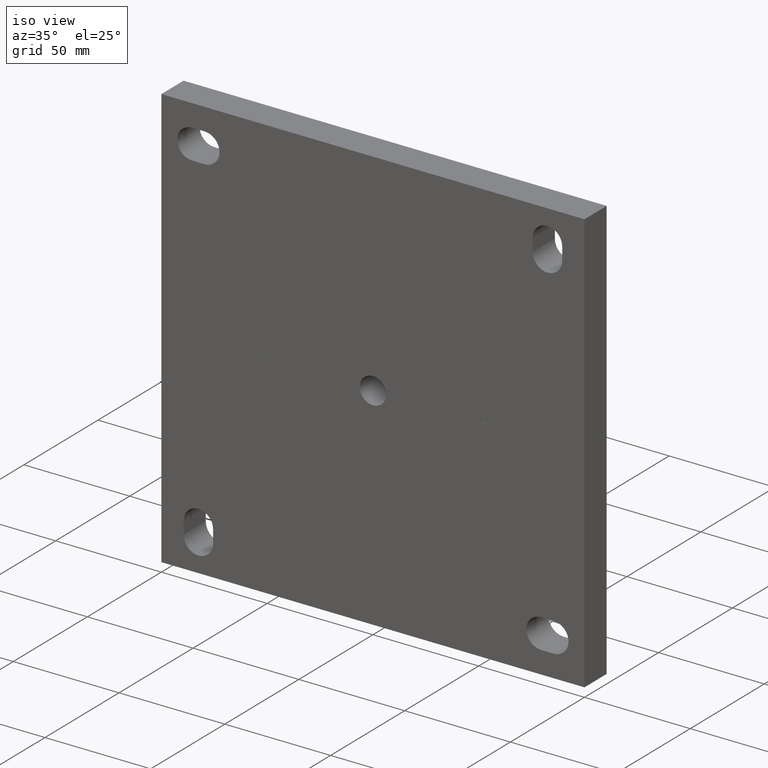
[diagram: clean part render]
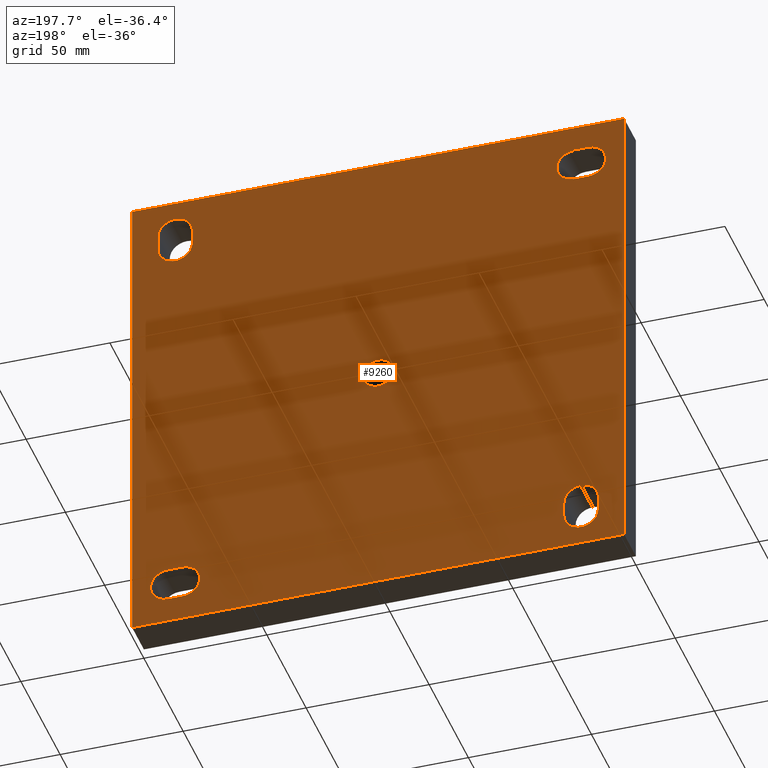
[diagram: tour spotlight — one face highlighted and labeled with its STEP entity id]
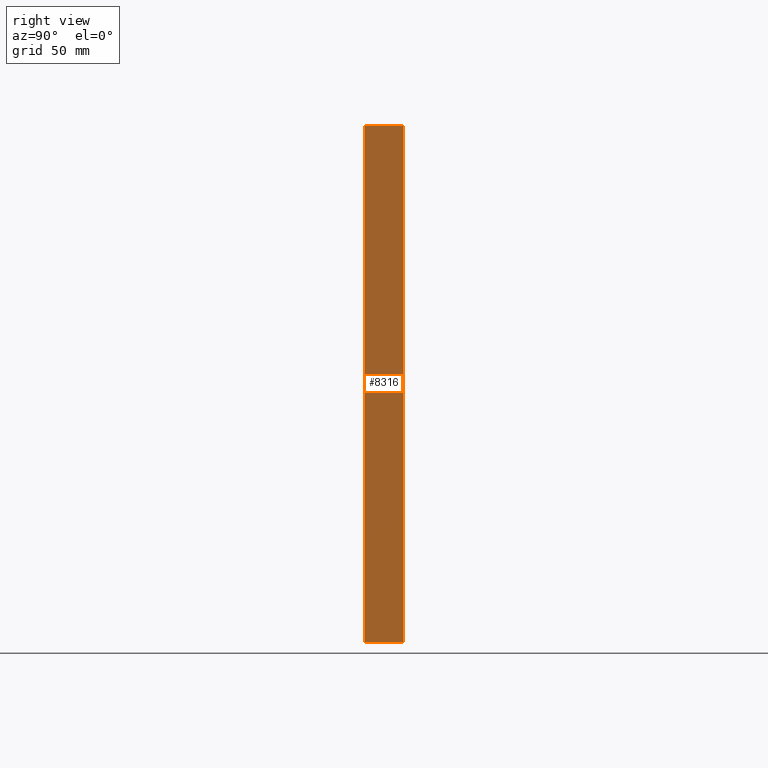
[diagram: tour spotlight — one face highlighted and labeled with its STEP entity id]
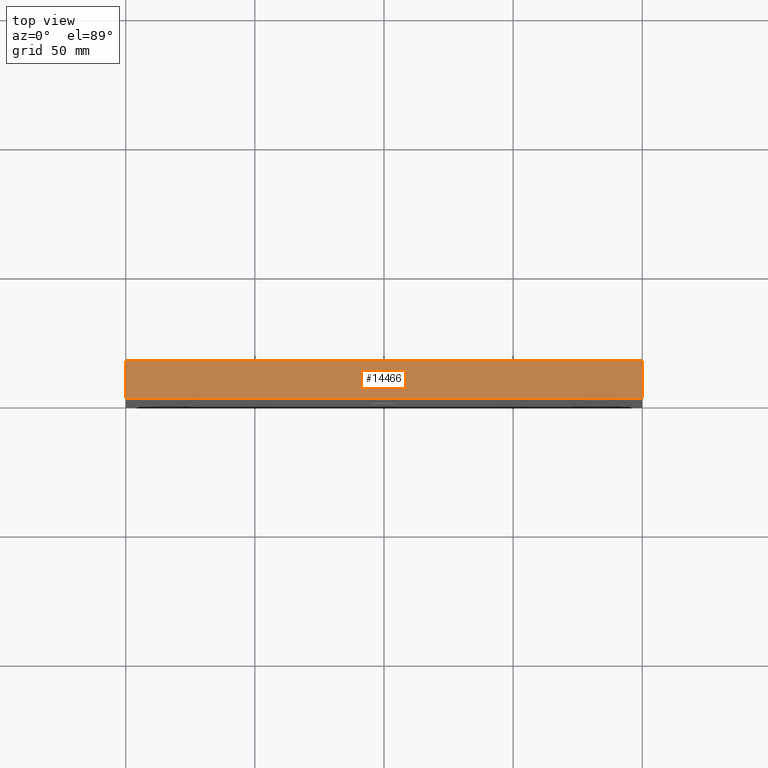
[diagram: tour spotlight — one face highlighted and labeled with its STEP entity id]
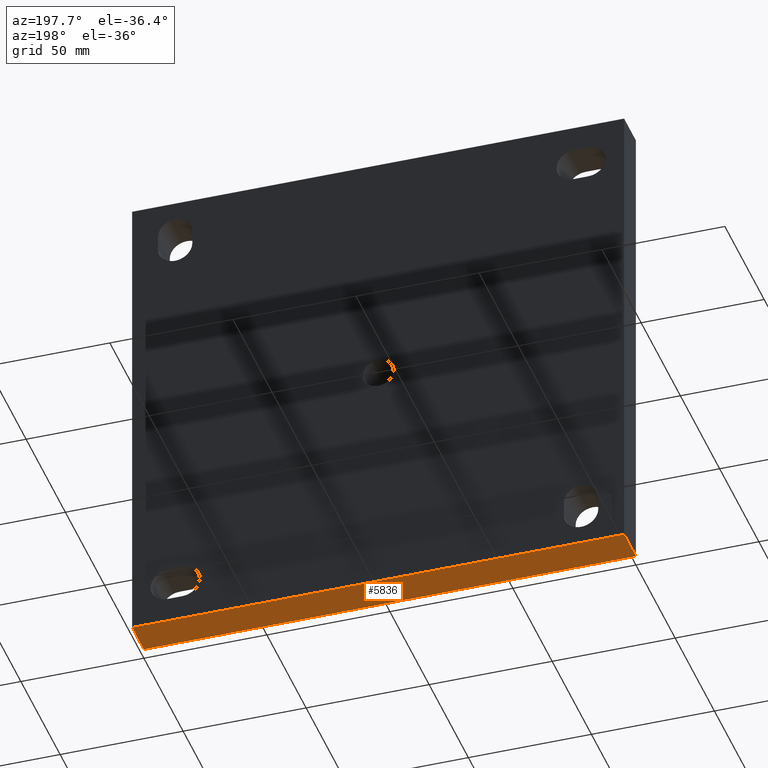
[diagram: tour spotlight — one face highlighted and labeled with its STEP entity id]
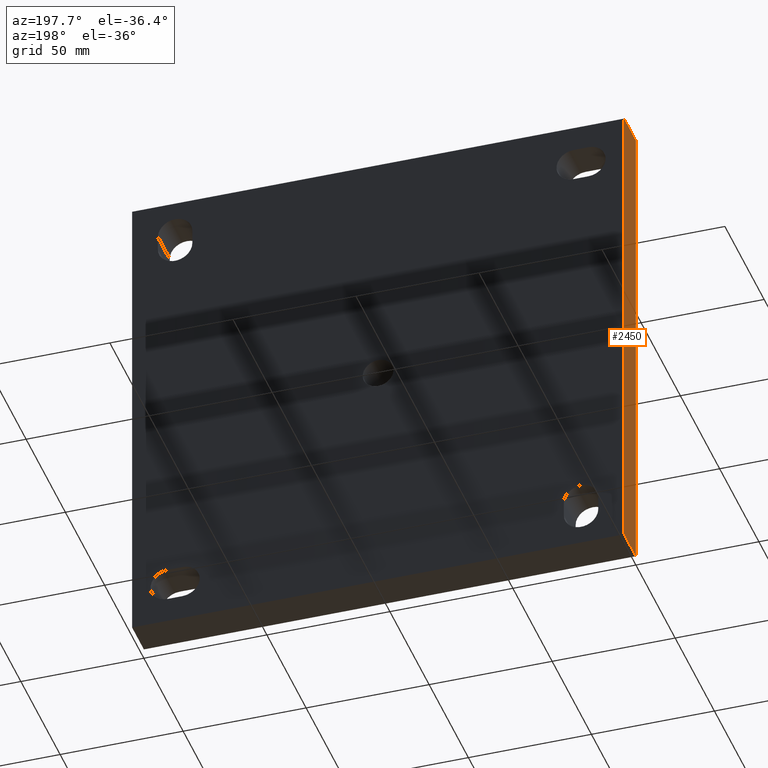
[diagram: tour spotlight — one face highlighted and labeled with its STEP entity id]
A machine part: a face-by-face anatomy tour. The part has 274 B-rep faces; the first image is the clean iso view, then the 5 largest visible faces are spotlighted one at a time (largest first), each with its STEP entity span.

Face 1 — auxiliary view, entity #9260. In plain terms, the highlighted planar face has unit normal (0, 1, 0).
Definition (entity closure, byte-faithful):
#150 = LINE ( 'NONE', #8916, #10671 ) ;
#172 = CIRCLE ( 'NONE', #11341, 6.250000000000000000 ) ;
#333 = VECTOR ( 'NONE', #14048, 1000.000000000000000 ) ;
#338 = LINE ( 'NONE', #8765, #9984 ) ;
#347 = ORIENTED_EDGE ( 'NONE', *, *, #7387, .F. ) ;
#373 = DIRECTION ( 'NONE',  ( 1.000000000000000000, 0.000000000000000000, 0.000000000000000000 ) ) ;
#389 = DIRECTION ( 'NONE',  ( 0.000000000000000000, 0.000000000000000000, 1.000000000000000000 ) ) ;
#395 = CARTESIAN_POINT ( 'NONE',  ( -89.50000000000002842, 15.00000000000000000, -79.50000000000004263 ) ) ;
#419 = VERTEX_POINT ( 'NONE', #5808 ) ;
#502 = DIRECTION ( 'NONE',  ( 0.000000000000000000, 0.000000000000000000, 1.000000000000000000 ) ) ;
#532 = EDGE_CURVE ( 'NONE', #874, #9828, #7900, .T. ) ;
#595 = CARTESIAN_POINT ( 'NONE',  ( 0.000000000000000000, 15.00000000000000000, 0.000000000000000000 ) ) ;
#625 = VERTEX_POINT ( 'NONE', #7100 ) ;
#673 = DIRECTION ( 'NONE',  ( 0.000000000000000000, 1.000000000000000000, 0.000000000000000000 ) ) ;
#738 = ORIENTED_EDGE ( 'NONE', *, *, #2467, .F. ) ;
#807 = AXIS2_PLACEMENT_3D ( 'NONE', #2226, #5700, #6830 ) ;
#820 = CARTESIAN_POINT ( 'NONE',  ( -75.50000000000001421, 15.00000000000000000, -85.50000000000002842 ) ) ;
#874 = VERTEX_POINT ( 'NONE', #14336 ) ;
#908 = FACE_BOUND ( 'NONE', #5432, .T. ) ;
#954 = CARTESIAN_POINT ( 'NONE',  ( -89.50000000000004263, 15.00000000000000000, -85.50000000000002842 ) ) ;
#984 = CARTESIAN_POINT ( 'NONE',  ( 85.50000000000001421, 15.00000000000000000, -89.50000000000000000 ) ) ;
#1014 = AXIS2_PLACEMENT_3D ( 'NONE', #3880, #7329, #502 ) ;
#1135 = VERTEX_POINT ( 'NONE', #9287 ) ;
#1282 = CARTESIAN_POINT ( 'NONE',  ( -82.50000000000001421, 15.00000000000000000, -85.50000000000002842 ) ) ;
#1462 = CARTESIAN_POINT ( 'NONE',  ( -99.99999999999997158, 15.00000000000000000, 100.0000000000000000 ) ) ;
#1478 = VERTEX_POINT ( 'NONE', #14121 ) ;
#1740 = CIRCLE ( 'NONE', #2978, 7.000000000000020428 ) ;
#1932 = VERTEX_POINT ( 'NONE', #954 ) ;
#1984 = VERTEX_POINT ( 'NONE', #14485 ) ;
#2006 = VECTOR ( 'NONE', #389, 1000.000000000000000 ) ;
#2074 = AXIS2_PLACEMENT_3D ( 'NONE', #595, #6186, #2790 ) ;
#2106 = DIRECTION ( 'NONE',  ( 0.000000000000000000, 1.000000000000000000, 0.000000000000000000 ) ) ;
#2172 = ORIENTED_EDGE ( 'NONE', *, *, #10475, .F. ) ;
#2216 = LINE ( 'NONE', #11877, #9400 ) ;
#2224 = CARTESIAN_POINT ( 'NONE',  ( -89.50000000000004263, 15.00000000000000000, -85.50000000000002842 ) ) ;
#2226 = CARTESIAN_POINT ( 'NONE',  ( -79.50000000000001421, 15.00000000000000000, 82.50000000000000000 ) ) ;
#2271 = EDGE_CURVE ( 'NONE', #5740, #3361, #14364, .T. ) ;
#2358 = VERTEX_POINT ( 'NONE', #14381 ) ;
#2368 = DIRECTION ( 'NONE',  ( 0.000000000000000000, 1.000000000000000000, 0.000000000000000000 ) ) ;
#2423 = ORIENTED_EDGE ( 'NONE', *, *, #2271, .T. ) ;
#2467 = EDGE_CURVE ( 'NONE', #1135, #625, #1740, .T. ) ;
#2529 = EDGE_CURVE ( 'NONE', #6737, #1984, #150, .T. ) ;
#2669 = VERTEX_POINT ( 'NONE', #820 ) ;
#2674 = DIRECTION ( 'NONE',  ( 0.000000000000000000, 0.000000000000000000, 1.000000000000000000 ) ) ;
#2790 = DIRECTION ( 'NONE',  ( 0.000000000000000000, -0.000000000000000000, 1.000000000000000000 ) ) ;
#2800 = VERTEX_POINT ( 'NONE', #7259 ) ;
#2978 = AXIS2_PLACEMENT_3D ( 'NONE', #14399, #2106, #11116 ) ;
#3197 = FACE_BOUND ( 'NONE', #9329, .T. ) ;
#3361 = VERTEX_POINT ( 'NONE', #5004 ) ;
#3385 = DIRECTION ( 'NONE',  ( 0.000000000000000000, 1.000000000000000000, 0.000000000000000000 ) ) ;
#3610 = ORIENTED_EDGE ( 'NONE', *, *, #11174, .T. ) ;
#3729 = CIRCLE ( 'NONE', #10217, 7.000000000000020428 ) ;
#3880 = CARTESIAN_POINT ( 'NONE',  ( 85.50000000000001421, 15.00000000000000000, -82.50000000000000000 ) ) ;
#3976 = CARTESIAN_POINT ( 'NONE',  ( -75.50000000000001421, 15.00000000000000000, -85.50000000000002842 ) ) ;
#3981 = DIRECTION ( 'NONE',  ( -0.000000000000000000, -0.000000000000000000, -1.000000000000000000 ) ) ;
#4142 = ORIENTED_EDGE ( 'NONE', *, *, #10731, .F. ) ;
#4147 = VECTOR ( 'NONE', #11779, 1000.000000000000000 ) ;
#4236 = DIRECTION ( 'NONE',  ( 0.000000000000000000, 0.000000000000000000, 1.000000000000000000 ) ) ;
#4275 = EDGE_CURVE ( 'NONE', #7255, #5740, #4698, .T. ) ;
#4459 = DIRECTION ( 'NONE',  ( 0.000000000000000000, 0.000000000000000000, 1.000000000000000000 ) ) ;
#4485 = CARTESIAN_POINT ( 'NONE',  ( -100.0000000000000142, 15.00000000000000000, -100.0000000000000000 ) ) ;
#4489 = DIRECTION ( 'NONE',  ( 1.000000000000000000, 0.000000000000000000, 0.000000000000000000 ) ) ;
#4501 = VERTEX_POINT ( 'NONE', #6865 ) ;
#4508 = DIRECTION ( 'NONE',  ( 0.000000000000000000, 0.000000000000000000, 1.000000000000000000 ) ) ;
#4634 = DIRECTION ( 'NONE',  ( -1.000000000000000000, -0.000000000000000000, -0.000000000000000000 ) ) ;
#4698 = LINE ( 'NONE', #4485, #5575 ) ;
#4776 = EDGE_CURVE ( 'NONE', #419, #1478, #4848, .T. ) ;
#4793 = ORIENTED_EDGE ( 'NONE', *, *, #13904, .F. ) ;
#4796 = CARTESIAN_POINT ( 'NONE',  ( 75.50000000000000000, 15.00000000000000000, 79.50000000000001421 ) ) ;
#4832 = CARTESIAN_POINT ( 'NONE',  ( 7.654042494670957606E-16, 15.00000000000000000, -6.250000000000000000 ) ) ;
#4848 = CIRCLE ( 'NONE', #12898, 6.999999999999992006 ) ;
#4880 = CARTESIAN_POINT ( 'NONE',  ( 82.50000000000001421, 15.00000000000000000, 85.50000000000002842 ) ) ;
#5004 = CARTESIAN_POINT ( 'NONE',  ( -99.99999999999997158, 15.00000000000000000, 100.0000000000000000 ) ) ;
#5139 = CARTESIAN_POINT ( 'NONE',  ( -85.50000000000001421, 15.00000000000000000, 82.50000000000000000 ) ) ;
#5262 = AXIS2_PLACEMENT_3D ( 'NONE', #7580, #12228, #4236 ) ;
#5270 = DIRECTION ( 'NONE',  ( -2.081668171172168513E-16, -0.000000000000000000, -1.000000000000000000 ) ) ;
#5281 = ORIENTED_EDGE ( 'NONE', *, *, #11497, .F. ) ;
#5370 = CARTESIAN_POINT ( 'NONE',  ( 100.0000000000000284, 15.00000000000000000, 100.0000000000000000 ) ) ;
#5432 = EDGE_LOOP ( 'NONE', ( #5281, #13524, #10028, #2172 ) ) ;
#5575 = VECTOR ( 'NONE', #4634, 1000.000000000000000 ) ;
#5580 = ORIENTED_EDGE ( 'NONE', *, *, #11756, .F. ) ;
#5700 = DIRECTION ( 'NONE',  ( 0.000000000000000000, 1.000000000000000000, 0.000000000000000000 ) ) ;
#5717 = EDGE_LOOP ( 'NONE', ( #5580, #9095 ) ) ;
#5740 = VERTEX_POINT ( 'NONE', #11348 ) ;
#5808 = CARTESIAN_POINT ( 'NONE',  ( -85.50000000000001421, 15.00000000000000000, 75.50000000000001421 ) ) ;
#5916 = EDGE_CURVE ( 'NONE', #2358, #2800, #2216, .T. ) ;
#6055 = CARTESIAN_POINT ( 'NONE',  ( 79.50000000000001421, 15.00000000000000000, -82.50000000000000000 ) ) ;
#6118 = EDGE_CURVE ( 'NONE', #1932, #13376, #9740, .T. ) ;
#6182 = LINE ( 'NONE', #3976, #4147 ) ;
#6186 = DIRECTION ( 'NONE',  ( 0.000000000000000000, 1.000000000000000000, 0.000000000000000000 ) ) ;
#6294 = ORIENTED_EDGE ( 'NONE', *, *, #4275, .T. ) ;
#6306 = AXIS2_PLACEMENT_3D ( 'NONE', #11885, #7294, #10661 ) ;
#6480 = CIRCLE ( 'NONE', #5262, 7.000000000000020428 ) ;
#6493 = CIRCLE ( 'NONE', #13801, 6.999999999999992006 ) ;
#6701 = CARTESIAN_POINT ( 'NONE',  ( -75.50000000000001421, 15.00000000000000000, -79.50000000000004263 ) ) ;
#6706 = FACE_BOUND ( 'NONE', #8010, .T. ) ;
#6737 = VERTEX_POINT ( 'NONE', #984 ) ;
#6753 = EDGE_CURVE ( 'NONE', #1478, #874, #10933, .T. ) ;
#6760 = DIRECTION ( 'NONE',  ( -1.000000000000000000, -0.000000000000000000, -0.000000000000000000 ) ) ;
#6830 = DIRECTION ( 'NONE',  ( 0.000000000000000000, 0.000000000000000000, 1.000000000000000000 ) ) ;
#6865 = CARTESIAN_POINT ( 'NONE',  ( 85.50000000000001421, 15.00000000000000000, -75.50000000000001421 ) ) ;
#6923 = VECTOR ( 'NONE', #10138, 1000.000000000000000 ) ;
#6940 = EDGE_CURVE ( 'NONE', #10735, #1135, #9883, .T. ) ;
#7100 = CARTESIAN_POINT ( 'NONE',  ( 82.50000000000001421, 15.00000000000000000, 92.50000000000005684 ) ) ;
#7116 = VERTEX_POINT ( 'NONE', #7402 ) ;
#7246 = CARTESIAN_POINT ( 'NONE',  ( 75.50000000000000000, 15.00000000000000000, 79.50000000000001421 ) ) ;
#7255 = VERTEX_POINT ( 'NONE', #13292 ) ;
#7257 = AXIS2_PLACEMENT_3D ( 'NONE', #13792, #10364, #8158 ) ;
#7259 = CARTESIAN_POINT ( 'NONE',  ( 89.50000000000004263, 15.00000000000000000, 79.50000000000001421 ) ) ;
#7294 = DIRECTION ( 'NONE',  ( 0.000000000000000000, 1.000000000000000000, 0.000000000000000000 ) ) ;
#7329 = DIRECTION ( 'NONE',  ( 0.000000000000000000, 1.000000000000000000, 0.000000000000000000 ) ) ;
#7387 = EDGE_CURVE ( 'NONE', #2669, #1932, #3729, .T. ) ;
#7402 = CARTESIAN_POINT ( 'NONE',  ( 79.50000000000001421, 15.00000000000000000, -75.50000000000002842 ) ) ;
#7449 = VECTOR ( 'NONE', #5270, 1000.000000000000000 ) ;
#7517 = ORIENTED_EDGE ( 'NONE', *, *, #6940, .F. ) ;
#7554 = VECTOR ( 'NONE', #4489, 1000.000000000000000 ) ;
#7580 = CARTESIAN_POINT ( 'NONE',  ( 82.50000000000001421, 15.00000000000000000, 79.50000000000001421 ) ) ;
#7586 = ORIENTED_EDGE ( 'NONE', *, *, #12941, .F. ) ;
#7622 = CARTESIAN_POINT ( 'NONE',  ( 99.99999999999998579, 15.00000000000000000, -100.0000000000000000 ) ) ;
#7899 = DIRECTION ( 'NONE',  ( 0.000000000000000000, 0.000000000000000000, 1.000000000000000000 ) ) ;
#7900 = CIRCLE ( 'NONE', #807, 6.999999999999992006 ) ;
#8010 = EDGE_LOOP ( 'NONE', ( #10791, #8089, #8118, #12902 ) ) ;
#8089 = ORIENTED_EDGE ( 'NONE', *, *, #12183, .F. ) ;
#8118 = ORIENTED_EDGE ( 'NONE', *, *, #532, .F. ) ;
#8158 = DIRECTION ( 'NONE',  ( 0.000000000000000000, 0.000000000000000000, 1.000000000000000000 ) ) ;
#8432 = DIRECTION ( 'NONE',  ( 0.000000000000000000, 0.000000000000000000, 1.000000000000000000 ) ) ;
#8509 = DIRECTION ( 'NONE',  ( 0.000000000000000000, 0.000000000000000000, 1.000000000000000000 ) ) ;
#8765 = CARTESIAN_POINT ( 'NONE',  ( -85.50000000000001421, 15.00000000000000000, 75.50000000000001421 ) ) ;
#8916 = CARTESIAN_POINT ( 'NONE',  ( 79.50000000000001421, 15.00000000000000000, -89.50000000000000000 ) ) ;
#8954 = CIRCLE ( 'NONE', #1014, 6.999999999999992006 ) ;
#8991 = EDGE_CURVE ( 'NONE', #625, #2358, #14074, .T. ) ;
#9066 = VERTEX_POINT ( 'NONE', #4832 ) ;
#9074 = CARTESIAN_POINT ( 'NONE',  ( 0.000000000000000000, 15.00000000000000000, 0.000000000000000000 ) ) ;
#9095 = ORIENTED_EDGE ( 'NONE', *, *, #13495, .F. ) ;
#9260 = ADVANCED_FACE ( 'NONE', ( #10375, #3197, #6706, #908, #12655, #12306 ), #10780, .T. ) ;
#9287 = CARTESIAN_POINT ( 'NONE',  ( 75.50000000000000000, 15.00000000000000000, 85.50000000000002842 ) ) ;
#9329 = EDGE_LOOP ( 'NONE', ( #4793, #12120, #10769, #738, #7517 ) ) ;
#9352 = DIRECTION ( 'NONE',  ( 0.000000000000000000, 0.000000000000000000, 1.000000000000000000 ) ) ;
#9400 = VECTOR ( 'NONE', #3981, 1000.000000000000000 ) ;
#9740 = LINE ( 'NONE', #2224, #11860 ) ;
#9828 = VERTEX_POINT ( 'NONE', #14186 ) ;
#9883 = LINE ( 'NONE', #4796, #2006 ) ;
#9984 = VECTOR ( 'NONE', #10917, 1000.000000000000000 ) ;
#10028 = ORIENTED_EDGE ( 'NONE', *, *, #12919, .F. ) ;
#10029 = AXIS2_PLACEMENT_3D ( 'NONE', #9074, #2368, #4459 ) ;
#10138 = DIRECTION ( 'NONE',  ( 1.000000000000000000, 0.000000000000000000, 0.000000000000000000 ) ) ;
#10217 = AXIS2_PLACEMENT_3D ( 'NONE', #1282, #3385, #4508 ) ;
#10364 = DIRECTION ( 'NONE',  ( 0.000000000000000000, 1.000000000000000000, 0.000000000000000000 ) ) ;
#10375 = FACE_BOUND ( 'NONE', #14206, .T. ) ;
#10377 = ORIENTED_EDGE ( 'NONE', *, *, #10790, .F. ) ;
#10475 = EDGE_CURVE ( 'NONE', #7116, #4501, #12294, .T. ) ;
#10532 = CIRCLE ( 'NONE', #6306, 7.000000000000006217 ) ;
#10590 = CARTESIAN_POINT ( 'NONE',  ( 0.000000000000000000, 15.00000000000000000, 0.000000000000000000 ) ) ;
#10640 = VERTEX_POINT ( 'NONE', #11260 ) ;
#10661 = DIRECTION ( 'NONE',  ( 0.000000000000000000, 0.000000000000000000, 1.000000000000000000 ) ) ;
#10671 = VECTOR ( 'NONE', #6760, 1000.000000000000000 ) ;
#10731 = EDGE_CURVE ( 'NONE', #12525, #12750, #11416, .T. ) ;
#10735 = VERTEX_POINT ( 'NONE', #7246 ) ;
#10769 = ORIENTED_EDGE ( 'NONE', *, *, #8991, .F. ) ;
#10780 = PLANE ( 'NONE',  #2074 ) ;
#10790 = EDGE_CURVE ( 'NONE', #13376, #12525, #10532, .T. ) ;
#10791 = ORIENTED_EDGE ( 'NONE', *, *, #4776, .F. ) ;
#10917 = DIRECTION ( 'NONE',  ( -1.000000000000000000, -0.000000000000000000, -0.000000000000000000 ) ) ;
#10933 = LINE ( 'NONE', #11272, #6923 ) ;
#10947 = VERTEX_POINT ( 'NONE', #5370 ) ;
#11116 = DIRECTION ( 'NONE',  ( 0.000000000000000000, 0.000000000000000000, 1.000000000000000000 ) ) ;
#11174 = EDGE_CURVE ( 'NONE', #3361, #10947, #13142, .T. ) ;
#11227 = VECTOR ( 'NONE', #373, 1000.000000000000000 ) ;
#11260 = CARTESIAN_POINT ( 'NONE',  ( 0.000000000000000000, 15.00000000000000000, 6.250000000000000000 ) ) ;
#11272 = CARTESIAN_POINT ( 'NONE',  ( -85.50000000000001421, 15.00000000000000000, 89.50000000000000000 ) ) ;
#11341 = AXIS2_PLACEMENT_3D ( 'NONE', #10590, #12946, #8432 ) ;
#11348 = CARTESIAN_POINT ( 'NONE',  ( -100.0000000000000142, 15.00000000000000000, -100.0000000000000000 ) ) ;
#11416 = CIRCLE ( 'NONE', #7257, 7.000000000000006217 ) ;
#11497 = EDGE_CURVE ( 'NONE', #1984, #7116, #6493, .T. ) ;
#11621 = EDGE_LOOP ( 'NONE', ( #14473, #6294, #2423, #3610 ) ) ;
#11644 = LINE ( 'NONE', #7622, #7449 ) ;
#11689 = CARTESIAN_POINT ( 'NONE',  ( -82.50000000000001421, 15.00000000000000000, -72.50000000000004263 ) ) ;
#11756 = EDGE_CURVE ( 'NONE', #10640, #9066, #14024, .T. ) ;
#11779 = DIRECTION ( 'NONE',  ( -0.000000000000000000, -0.000000000000000000, -1.000000000000000000 ) ) ;
#11860 = VECTOR ( 'NONE', #7899, 1000.000000000000000 ) ;
#11877 = CARTESIAN_POINT ( 'NONE',  ( 89.50000000000004263, 15.00000000000000000, 79.50000000000001421 ) ) ;
#11885 = CARTESIAN_POINT ( 'NONE',  ( -82.50000000000001421, 15.00000000000000000, -79.50000000000004263 ) ) ;
#11886 = CARTESIAN_POINT ( 'NONE',  ( -100.0000000000000142, 15.00000000000000000, -100.0000000000000000 ) ) ;
#12120 = ORIENTED_EDGE ( 'NONE', *, *, #5916, .F. ) ;
#12183 = EDGE_CURVE ( 'NONE', #9828, #419, #338, .T. ) ;
#12228 = DIRECTION ( 'NONE',  ( 0.000000000000000000, 1.000000000000000000, 0.000000000000000000 ) ) ;
#12236 = CARTESIAN_POINT ( 'NONE',  ( 79.50000000000001421, 15.00000000000000000, -75.50000000000002842 ) ) ;
#12294 = LINE ( 'NONE', #12236, #7554 ) ;
#12306 = FACE_OUTER_BOUND ( 'NONE', #11621, .T. ) ;
#12525 = VERTEX_POINT ( 'NONE', #11689 ) ;
#12537 = DIRECTION ( 'NONE',  ( 0.000000000000000000, 1.000000000000000000, 0.000000000000000000 ) ) ;
#12586 = AXIS2_PLACEMENT_3D ( 'NONE', #4880, #12537, #9352 ) ;
#12634 = EDGE_CURVE ( 'NONE', #10947, #7255, #11644, .T. ) ;
#12655 = FACE_BOUND ( 'NONE', #5717, .T. ) ;
#12750 = VERTEX_POINT ( 'NONE', #6701 ) ;
#12898 = AXIS2_PLACEMENT_3D ( 'NONE', #5139, #673, #8509 ) ;
#12902 = ORIENTED_EDGE ( 'NONE', *, *, #6753, .F. ) ;
#12919 = EDGE_CURVE ( 'NONE', #4501, #6737, #8954, .T. ) ;
#12941 = EDGE_CURVE ( 'NONE', #12750, #2669, #6182, .T. ) ;
#12946 = DIRECTION ( 'NONE',  ( 0.000000000000000000, 1.000000000000000000, 0.000000000000000000 ) ) ;
#13142 = LINE ( 'NONE', #1462, #11227 ) ;
#13292 = CARTESIAN_POINT ( 'NONE',  ( 99.99999999999998579, 15.00000000000000000, -100.0000000000000000 ) ) ;
#13376 = VERTEX_POINT ( 'NONE', #395 ) ;
#13495 = EDGE_CURVE ( 'NONE', #9066, #10640, #172, .T. ) ;
#13524 = ORIENTED_EDGE ( 'NONE', *, *, #2529, .F. ) ;
#13736 = DIRECTION ( 'NONE',  ( 0.000000000000000000, 1.000000000000000000, 0.000000000000000000 ) ) ;
#13792 = CARTESIAN_POINT ( 'NONE',  ( -82.50000000000001421, 15.00000000000000000, -79.50000000000004263 ) ) ;
#13801 = AXIS2_PLACEMENT_3D ( 'NONE', #6055, #13736, #2674 ) ;
#13904 = EDGE_CURVE ( 'NONE', #2800, #10735, #6480, .T. ) ;
#14024 = CIRCLE ( 'NONE', #10029, 6.250000000000000000 ) ;
#14048 = DIRECTION ( 'NONE',  ( 2.081668171172168513E-16, 0.000000000000000000, 1.000000000000000000 ) ) ;
#14074 = CIRCLE ( 'NONE', #12586, 7.000000000000020428 ) ;
#14121 = CARTESIAN_POINT ( 'NONE',  ( -85.50000000000001421, 15.00000000000000000, 89.50000000000000000 ) ) ;
#14186 = CARTESIAN_POINT ( 'NONE',  ( -79.50000000000001421, 15.00000000000000000, 75.50000000000001421 ) ) ;
#14206 = EDGE_LOOP ( 'NONE', ( #347, #7586, #4142, #10377, #14465 ) ) ;
#14336 = CARTESIAN_POINT ( 'NONE',  ( -79.50000000000001421, 15.00000000000000000, 89.50000000000000000 ) ) ;
#14364 = LINE ( 'NONE', #11886, #333 ) ;
#14381 = CARTESIAN_POINT ( 'NONE',  ( 89.50000000000004263, 15.00000000000000000, 85.50000000000002842 ) ) ;
#14399 = CARTESIAN_POINT ( 'NONE',  ( 82.50000000000001421, 15.00000000000000000, 85.50000000000002842 ) ) ;
#14465 = ORIENTED_EDGE ( 'NONE', *, *, #6118, .F. ) ;
#14473 = ORIENTED_EDGE ( 'NONE', *, *, #12634, .T. ) ;
#14485 = CARTESIAN_POINT ( 'NONE',  ( 79.50000000000001421, 15.00000000000000000, -89.50000000000000000 ) ) ;

Face 2 — right view, entity #8316. In plain terms, the highlighted planar face has unit normal (-1, 0, 0).
Definition (entity closure, byte-faithful):
#1735 = DIRECTION ( 'NONE',  ( -1.000000000000000000, 0.000000000000000000, 2.081668171172168513E-16 ) ) ;
#2094 = LINE ( 'NONE', #9148, #4892 ) ;
#3076 = ORIENTED_EDGE ( 'NONE', *, *, #14035, .T. ) ;
#3146 = LINE ( 'NONE', #5795, #5431 ) ;
#3619 = ORIENTED_EDGE ( 'NONE', *, *, #12634, .F. ) ;
#4054 = CARTESIAN_POINT ( 'NONE',  ( 99.99999999999998579, 15.00000000000000000, -100.0000000000000000 ) ) ;
#4892 = VECTOR ( 'NONE', #12702, 1000.000000000000000 ) ;
#5270 = DIRECTION ( 'NONE',  ( -2.081668171172168513E-16, -0.000000000000000000, -1.000000000000000000 ) ) ;
#5370 = CARTESIAN_POINT ( 'NONE',  ( 100.0000000000000284, 15.00000000000000000, 100.0000000000000000 ) ) ;
#5431 = VECTOR ( 'NONE', #11519, 1000.000000000000000 ) ;
#5693 = ORIENTED_EDGE ( 'NONE', *, *, #8823, .F. ) ;
#5795 = CARTESIAN_POINT ( 'NONE',  ( 100.0000000000000284, 15.00000000000000000, 100.0000000000000000 ) ) ;
#6033 = VERTEX_POINT ( 'NONE', #6489 ) ;
#6489 = CARTESIAN_POINT ( 'NONE',  ( 99.99999999999998579, 0.000000000000000000, -100.0000000000000000 ) ) ;
#6538 = LINE ( 'NONE', #4054, #7749 ) ;
#7255 = VERTEX_POINT ( 'NONE', #13292 ) ;
#7327 = PLANE ( 'NONE',  #7882 ) ;
#7420 = CARTESIAN_POINT ( 'NONE',  ( 99.99999999999998579, 15.00000000000000000, -100.0000000000000000 ) ) ;
#7449 = VECTOR ( 'NONE', #5270, 1000.000000000000000 ) ;
#7622 = CARTESIAN_POINT ( 'NONE',  ( 99.99999999999998579, 15.00000000000000000, -100.0000000000000000 ) ) ;
#7734 = DIRECTION ( 'NONE',  ( -0.000000000000000000, -1.000000000000000000, -0.000000000000000000 ) ) ;
#7749 = VECTOR ( 'NONE', #7734, 1000.000000000000000 ) ;
#7882 = AXIS2_PLACEMENT_3D ( 'NONE', #7420, #1735, #9617 ) ;
#8316 = ADVANCED_FACE ( 'NONE', ( #13891 ), #7327, .F. ) ;
#8823 = EDGE_CURVE ( 'NONE', #7255, #6033, #6538, .T. ) ;
#9148 = CARTESIAN_POINT ( 'NONE',  ( 99.99999999999998579, 0.000000000000000000, -100.0000000000000000 ) ) ;
#9617 = DIRECTION ( 'NONE',  ( 2.081668171172168513E-16, 0.000000000000000000, 1.000000000000000000 ) ) ;
#10452 = CARTESIAN_POINT ( 'NONE',  ( 100.0000000000000284, 0.000000000000000000, 100.0000000000000000 ) ) ;
#10947 = VERTEX_POINT ( 'NONE', #5370 ) ;
#11509 = VERTEX_POINT ( 'NONE', #10452 ) ;
#11519 = DIRECTION ( 'NONE',  ( -0.000000000000000000, -1.000000000000000000, -0.000000000000000000 ) ) ;
#11593 = ORIENTED_EDGE ( 'NONE', *, *, #11801, .T. ) ;
#11644 = LINE ( 'NONE', #7622, #7449 ) ;
#11801 = EDGE_CURVE ( 'NONE', #10947, #11509, #3146, .T. ) ;
#12634 = EDGE_CURVE ( 'NONE', #10947, #7255, #11644, .T. ) ;
#12702 = DIRECTION ( 'NONE',  ( -2.081668171172168513E-16, -0.000000000000000000, -1.000000000000000000 ) ) ;
#13292 = CARTESIAN_POINT ( 'NONE',  ( 99.99999999999998579, 15.00000000000000000, -100.0000000000000000 ) ) ;
#13659 = EDGE_LOOP ( 'NONE', ( #3076, #5693, #3619, #11593 ) ) ;
#13891 = FACE_OUTER_BOUND ( 'NONE', #13659, .T. ) ;
#14035 = EDGE_CURVE ( 'NONE', #11509, #6033, #2094, .T. ) ;

Face 3 — top view, entity #14466. In plain terms, the highlighted planar face has unit normal (0, 0, -1).
Definition (entity closure, byte-faithful):
#373 = DIRECTION ( 'NONE',  ( 1.000000000000000000, 0.000000000000000000, 0.000000000000000000 ) ) ;
#602 = VECTOR ( 'NONE', #3028, 1000.000000000000000 ) ;
#762 = EDGE_CURVE ( 'NONE', #3361, #9571, #6131, .T. ) ;
#1166 = DIRECTION ( 'NONE',  ( -0.000000000000000000, -1.000000000000000000, -0.000000000000000000 ) ) ;
#1462 = CARTESIAN_POINT ( 'NONE',  ( -99.99999999999997158, 15.00000000000000000, 100.0000000000000000 ) ) ;
#1634 = PLANE ( 'NONE',  #9030 ) ;
#3028 = DIRECTION ( 'NONE',  ( 1.000000000000000000, 0.000000000000000000, 0.000000000000000000 ) ) ;
#3146 = LINE ( 'NONE', #5795, #5431 ) ;
#3164 = EDGE_LOOP ( 'NONE', ( #10190, #4103, #10006, #13242 ) ) ;
#3361 = VERTEX_POINT ( 'NONE', #5004 ) ;
#4014 = DIRECTION ( 'NONE',  ( 0.000000000000000000, 0.000000000000000000, -1.000000000000000000 ) ) ;
#4103 = ORIENTED_EDGE ( 'NONE', *, *, #11801, .F. ) ;
#5002 = CARTESIAN_POINT ( 'NONE',  ( -99.99999999999997158, 15.00000000000000000, 100.0000000000000000 ) ) ;
#5004 = CARTESIAN_POINT ( 'NONE',  ( -99.99999999999997158, 15.00000000000000000, 100.0000000000000000 ) ) ;
#5370 = CARTESIAN_POINT ( 'NONE',  ( 100.0000000000000284, 15.00000000000000000, 100.0000000000000000 ) ) ;
#5431 = VECTOR ( 'NONE', #11519, 1000.000000000000000 ) ;
#5795 = CARTESIAN_POINT ( 'NONE',  ( 100.0000000000000284, 15.00000000000000000, 100.0000000000000000 ) ) ;
#6131 = LINE ( 'NONE', #11209, #12437 ) ;
#6374 = CARTESIAN_POINT ( 'NONE',  ( -99.99999999999997158, 0.000000000000000000, 100.0000000000000000 ) ) ;
#7144 = EDGE_CURVE ( 'NONE', #9571, #11509, #12521, .T. ) ;
#9030 = AXIS2_PLACEMENT_3D ( 'NONE', #5002, #4014, #12896 ) ;
#9571 = VERTEX_POINT ( 'NONE', #11161 ) ;
#10006 = ORIENTED_EDGE ( 'NONE', *, *, #11174, .F. ) ;
#10190 = ORIENTED_EDGE ( 'NONE', *, *, #7144, .T. ) ;
#10452 = CARTESIAN_POINT ( 'NONE',  ( 100.0000000000000284, 0.000000000000000000, 100.0000000000000000 ) ) ;
#10947 = VERTEX_POINT ( 'NONE', #5370 ) ;
#11038 = FACE_OUTER_BOUND ( 'NONE', #3164, .T. ) ;
#11161 = CARTESIAN_POINT ( 'NONE',  ( -99.99999999999997158, 0.000000000000000000, 100.0000000000000000 ) ) ;
#11174 = EDGE_CURVE ( 'NONE', #3361, #10947, #13142, .T. ) ;
#11209 = CARTESIAN_POINT ( 'NONE',  ( -99.99999999999997158, 15.00000000000000000, 100.0000000000000000 ) ) ;
#11227 = VECTOR ( 'NONE', #373, 1000.000000000000000 ) ;
#11509 = VERTEX_POINT ( 'NONE', #10452 ) ;
#11519 = DIRECTION ( 'NONE',  ( -0.000000000000000000, -1.000000000000000000, -0.000000000000000000 ) ) ;
#11801 = EDGE_CURVE ( 'NONE', #10947, #11509, #3146, .T. ) ;
#12437 = VECTOR ( 'NONE', #1166, 1000.000000000000000 ) ;
#12521 = LINE ( 'NONE', #6374, #602 ) ;
#12896 = DIRECTION ( 'NONE',  ( -1.000000000000000000, 0.000000000000000000, -0.000000000000000000 ) ) ;
#13142 = LINE ( 'NONE', #1462, #11227 ) ;
#13242 = ORIENTED_EDGE ( 'NONE', *, *, #762, .T. ) ;
#14466 = ADVANCED_FACE ( 'NONE', ( #11038 ), #1634, .F. ) ;

Face 4 — auxiliary view, entity #5836. In plain terms, the highlighted planar face has unit normal (0, 0, 1).
Definition (entity closure, byte-faithful):
#413 = DIRECTION ( 'NONE',  ( 1.000000000000000000, 0.000000000000000000, -0.000000000000000000 ) ) ;
#601 = EDGE_LOOP ( 'NONE', ( #1837, #4799, #10739, #6599 ) ) ;
#609 = VERTEX_POINT ( 'NONE', #12535 ) ;
#1837 = ORIENTED_EDGE ( 'NONE', *, *, #8518, .T. ) ;
#1981 = LINE ( 'NONE', #12545, #9344 ) ;
#2038 = EDGE_CURVE ( 'NONE', #5740, #609, #9464, .T. ) ;
#2910 = AXIS2_PLACEMENT_3D ( 'NONE', #13785, #12571, #413 ) ;
#3834 = VECTOR ( 'NONE', #10365, 1000.000000000000000 ) ;
#4054 = CARTESIAN_POINT ( 'NONE',  ( 99.99999999999998579, 15.00000000000000000, -100.0000000000000000 ) ) ;
#4275 = EDGE_CURVE ( 'NONE', #7255, #5740, #4698, .T. ) ;
#4485 = CARTESIAN_POINT ( 'NONE',  ( -100.0000000000000142, 15.00000000000000000, -100.0000000000000000 ) ) ;
#4634 = DIRECTION ( 'NONE',  ( -1.000000000000000000, -0.000000000000000000, -0.000000000000000000 ) ) ;
#4698 = LINE ( 'NONE', #4485, #5575 ) ;
#4799 = ORIENTED_EDGE ( 'NONE', *, *, #2038, .F. ) ;
#5575 = VECTOR ( 'NONE', #4634, 1000.000000000000000 ) ;
#5740 = VERTEX_POINT ( 'NONE', #11348 ) ;
#5787 = DIRECTION ( 'NONE',  ( -1.000000000000000000, -0.000000000000000000, -0.000000000000000000 ) ) ;
#5836 = ADVANCED_FACE ( 'NONE', ( #13088 ), #11451, .F. ) ;
#6033 = VERTEX_POINT ( 'NONE', #6489 ) ;
#6489 = CARTESIAN_POINT ( 'NONE',  ( 99.99999999999998579, 0.000000000000000000, -100.0000000000000000 ) ) ;
#6538 = LINE ( 'NONE', #4054, #7749 ) ;
#6599 = ORIENTED_EDGE ( 'NONE', *, *, #8823, .T. ) ;
#7255 = VERTEX_POINT ( 'NONE', #13292 ) ;
#7734 = DIRECTION ( 'NONE',  ( -0.000000000000000000, -1.000000000000000000, -0.000000000000000000 ) ) ;
#7749 = VECTOR ( 'NONE', #7734, 1000.000000000000000 ) ;
#8069 = CARTESIAN_POINT ( 'NONE',  ( -100.0000000000000142, 15.00000000000000000, -100.0000000000000000 ) ) ;
#8518 = EDGE_CURVE ( 'NONE', #6033, #609, #1981, .T. ) ;
#8823 = EDGE_CURVE ( 'NONE', #7255, #6033, #6538, .T. ) ;
#9344 = VECTOR ( 'NONE', #5787, 1000.000000000000000 ) ;
#9464 = LINE ( 'NONE', #8069, #3834 ) ;
#10365 = DIRECTION ( 'NONE',  ( -0.000000000000000000, -1.000000000000000000, -0.000000000000000000 ) ) ;
#10739 = ORIENTED_EDGE ( 'NONE', *, *, #4275, .F. ) ;
#11348 = CARTESIAN_POINT ( 'NONE',  ( -100.0000000000000142, 15.00000000000000000, -100.0000000000000000 ) ) ;
#11451 = PLANE ( 'NONE',  #2910 ) ;
#12535 = CARTESIAN_POINT ( 'NONE',  ( -100.0000000000000142, 0.000000000000000000, -100.0000000000000000 ) ) ;
#12545 = CARTESIAN_POINT ( 'NONE',  ( -100.0000000000000142, 0.000000000000000000, -100.0000000000000000 ) ) ;
#12571 = DIRECTION ( 'NONE',  ( 0.000000000000000000, 0.000000000000000000, 1.000000000000000000 ) ) ;
#13088 = FACE_OUTER_BOUND ( 'NONE', #601, .T. ) ;
#13292 = CARTESIAN_POINT ( 'NONE',  ( 99.99999999999998579, 15.00000000000000000, -100.0000000000000000 ) ) ;
#13785 = CARTESIAN_POINT ( 'NONE',  ( -100.0000000000000142, 15.00000000000000000, -100.0000000000000000 ) ) ;

Face 5 — auxiliary view, entity #2450. In plain terms, the highlighted planar face has unit normal (1, 0, -0).
Definition (entity closure, byte-faithful):
#274 = EDGE_CURVE ( 'NONE', #609, #9571, #14410, .T. ) ;
#333 = VECTOR ( 'NONE', #14048, 1000.000000000000000 ) ;
#609 = VERTEX_POINT ( 'NONE', #12535 ) ;
#762 = EDGE_CURVE ( 'NONE', #3361, #9571, #6131, .T. ) ;
#1058 = PLANE ( 'NONE',  #14066 ) ;
#1083 = ORIENTED_EDGE ( 'NONE', *, *, #2271, .F. ) ;
#1145 = ORIENTED_EDGE ( 'NONE', *, *, #762, .F. ) ;
#1166 = DIRECTION ( 'NONE',  ( -0.000000000000000000, -1.000000000000000000, -0.000000000000000000 ) ) ;
#2038 = EDGE_CURVE ( 'NONE', #5740, #609, #9464, .T. ) ;
#2271 = EDGE_CURVE ( 'NONE', #5740, #3361, #14364, .T. ) ;
#2450 = ADVANCED_FACE ( 'NONE', ( #9450 ), #1058, .F. ) ;
#3019 = ORIENTED_EDGE ( 'NONE', *, *, #2038, .T. ) ;
#3361 = VERTEX_POINT ( 'NONE', #5004 ) ;
#3834 = VECTOR ( 'NONE', #10365, 1000.000000000000000 ) ;
#3919 = DIRECTION ( 'NONE',  ( 2.081668171172168513E-16, 0.000000000000000000, 1.000000000000000000 ) ) ;
#4381 = DIRECTION ( 'NONE',  ( -2.081668171172168513E-16, 0.000000000000000000, -1.000000000000000000 ) ) ;
#5004 = CARTESIAN_POINT ( 'NONE',  ( -99.99999999999997158, 15.00000000000000000, 100.0000000000000000 ) ) ;
#5740 = VERTEX_POINT ( 'NONE', #11348 ) ;
#6131 = LINE ( 'NONE', #11209, #12437 ) ;
#7272 = CARTESIAN_POINT ( 'NONE',  ( -100.0000000000000142, 0.000000000000000000, -100.0000000000000000 ) ) ;
#7556 = ORIENTED_EDGE ( 'NONE', *, *, #274, .T. ) ;
#8069 = CARTESIAN_POINT ( 'NONE',  ( -100.0000000000000142, 15.00000000000000000, -100.0000000000000000 ) ) ;
#9450 = FACE_OUTER_BOUND ( 'NONE', #11257, .T. ) ;
#9464 = LINE ( 'NONE', #8069, #3834 ) ;
#9571 = VERTEX_POINT ( 'NONE', #11161 ) ;
#9799 = VECTOR ( 'NONE', #3919, 1000.000000000000000 ) ;
#10020 = CARTESIAN_POINT ( 'NONE',  ( -100.0000000000000142, 15.00000000000000000, -100.0000000000000000 ) ) ;
#10365 = DIRECTION ( 'NONE',  ( -0.000000000000000000, -1.000000000000000000, -0.000000000000000000 ) ) ;
#11100 = DIRECTION ( 'NONE',  ( 1.000000000000000000, 0.000000000000000000, -2.081668171172168513E-16 ) ) ;
#11161 = CARTESIAN_POINT ( 'NONE',  ( -99.99999999999997158, 0.000000000000000000, 100.0000000000000000 ) ) ;
#11209 = CARTESIAN_POINT ( 'NONE',  ( -99.99999999999997158, 15.00000000000000000, 100.0000000000000000 ) ) ;
#11257 = EDGE_LOOP ( 'NONE', ( #7556, #1145, #1083, #3019 ) ) ;
#11348 = CARTESIAN_POINT ( 'NONE',  ( -100.0000000000000142, 15.00000000000000000, -100.0000000000000000 ) ) ;
#11886 = CARTESIAN_POINT ( 'NONE',  ( -100.0000000000000142, 15.00000000000000000, -100.0000000000000000 ) ) ;
#12437 = VECTOR ( 'NONE', #1166, 1000.000000000000000 ) ;
#12535 = CARTESIAN_POINT ( 'NONE',  ( -100.0000000000000142, 0.000000000000000000, -100.0000000000000000 ) ) ;
#14048 = DIRECTION ( 'NONE',  ( 2.081668171172168513E-16, 0.000000000000000000, 1.000000000000000000 ) ) ;
#14066 = AXIS2_PLACEMENT_3D ( 'NONE', #10020, #11100, #4381 ) ;
#14364 = LINE ( 'NONE', #11886, #333 ) ;
#14410 = LINE ( 'NONE', #7272, #9799 ) ;